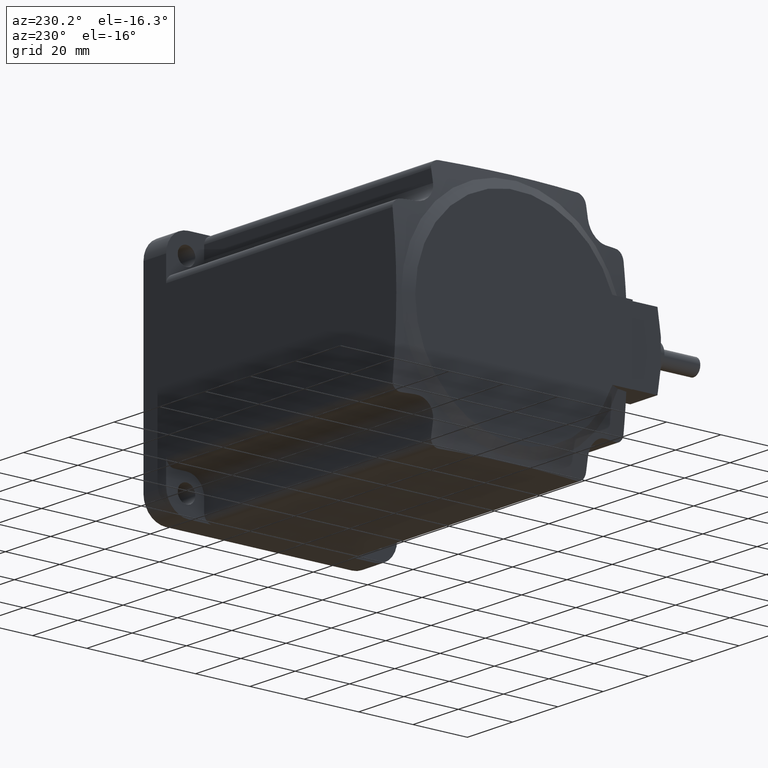
[diagram: clean part render]
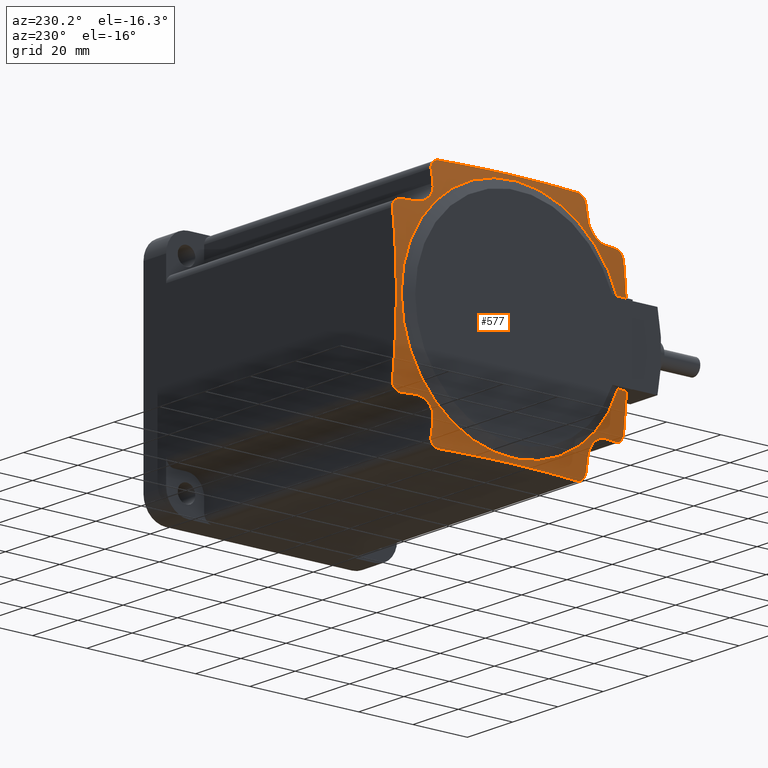
[diagram: same view with one face highlighted and labeled with its STEP entity id]
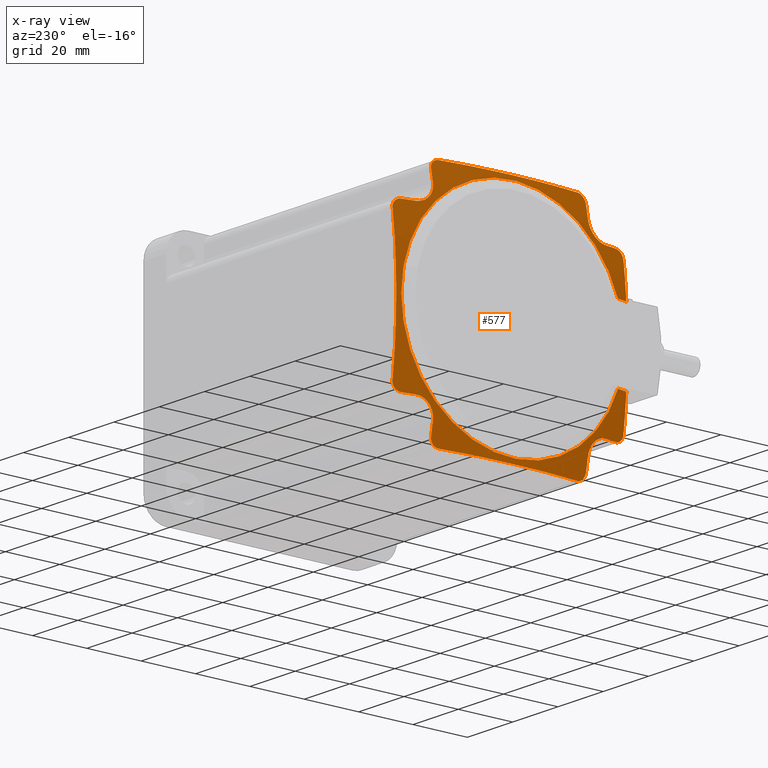
[diagram: x-ray of the same camera — body ghosted, the highlighted face saturated]
A machine part, auxiliary view. The second image highlights one B-rep face of the part: STEP entity #577.
The next image is the same camera in x-ray: the body ghosted, the highlighted face saturated — about 0% of this face is hidden behind the body in this view.
In plain terms, the highlighted spherical surface has radius 200 mm.
Its self-contained STEP definition (entity closure, byte-faithful):
#577 = ADVANCED_FACE( '', ( #1285 ), #1286, .T. );
#1285 = FACE_OUTER_BOUND( '', #2113, .T. );
#1286 = SPHERICAL_SURFACE( '', #2114, 200.000000000000 );
#2113 = EDGE_LOOP( '', ( #3770, #3771, #3772, #3773, #3774, #3775, #3776, #3777, #3778, #3779, #3780, #3781, #3782, #3783, #3784, #3785, #3786, #3787, #3788, #3789, #3790, #3791, #3792, #3793, #3794, #3795, #3796, #3797 ) );
#2114 = AXIS2_PLACEMENT_3D( '', #3798, #3799, #3800 );
#3770 = ORIENTED_EDGE( '', *, *, #5602, .F. );
#3771 = ORIENTED_EDGE( '', *, *, #5603, .T. );
#3772 = ORIENTED_EDGE( '', *, *, #5407, .T. );
#3773 = ORIENTED_EDGE( '', *, *, #4954, .T. );
#3774 = ORIENTED_EDGE( '', *, *, #5604, .F. );
#3775 = ORIENTED_EDGE( '', *, *, #5599, .T. );
#3776 = ORIENTED_EDGE( '', *, *, #5555, .T. );
#3777 = ORIENTED_EDGE( '', *, *, #5605, .F. );
#3778 = ORIENTED_EDGE( '', *, *, #5139, .T. );
#3779 = ORIENTED_EDGE( '', *, *, #5606, .T. );
#3780 = ORIENTED_EDGE( '', *, *, #5305, .F. );
#3781 = ORIENTED_EDGE( '', *, *, #5134, .T. );
#3782 = ORIENTED_EDGE( '', *, *, #5538, .T. );
#3783 = ORIENTED_EDGE( '', *, *, #5388, .F. );
#3784 = ORIENTED_EDGE( '', *, *, #5243, .T. );
#3785 = ORIENTED_EDGE( '', *, *, #5466, .T. );
#3786 = ORIENTED_EDGE( '', *, *, #5607, .F. );
#3787 = ORIENTED_EDGE( '', *, *, #5187, .T. );
#3788 = ORIENTED_EDGE( '', *, *, #5608, .T. );
#3789 = ORIENTED_EDGE( '', *, *, #5234, .F. );
#3790 = ORIENTED_EDGE( '', *, *, #5520, .T. );
#3791 = ORIENTED_EDGE( '', *, *, #5248, .T. );
#3792 = ORIENTED_EDGE( '', *, *, #5609, .F. );
#3793 = ORIENTED_EDGE( '', *, *, #5486, .T. );
#3794 = ORIENTED_EDGE( '', *, *, #5039, .T. );
#3795 = ORIENTED_EDGE( '', *, *, #5014, .F. );
#3796 = ORIENTED_EDGE( '', *, *, #5377, .T. );
#3797 = ORIENTED_EDGE( '', *, *, #4970, .T. );
#3798 = CARTESIAN_POINT( '', ( 83.7598999999906, 0.000000000000000, 0.000000000000000 ) );
#3799 = DIRECTION( '', ( 1.00000000000000, 0.000000000000000, 0.000000000000000 ) );
#3800 = DIRECTION( '', ( 0.000000000000000, 1.00000000000000, 0.000000000000000 ) );
#4954 = EDGE_CURVE( '', #5941, #5942, #5943, .F. );
#4970 = EDGE_CURVE( '', #5971, #5969, #5972, .T. );
#5014 = EDGE_CURVE( '', #6048, #6044, #6050, .T. );
#5039 = EDGE_CURVE( '', #6093, #6044, #6094, .T. );
#5134 = EDGE_CURVE( '', #6262, #6260, #6263, .T. );
#5139 = EDGE_CURVE( '', #6271, #6269, #6272, .T. );
#5187 = EDGE_CURVE( '', #6348, #6346, #6349, .T. );
#5234 = EDGE_CURVE( '', #6428, #6424, #6430, .T. );
#5243 = EDGE_CURVE( '', #6446, #6444, #6447, .T. );
#5248 = EDGE_CURVE( '', #6455, #6453, #6456, .T. );
#5305 = EDGE_CURVE( '', #6262, #6545, #6547, .T. );
#5377 = EDGE_CURVE( '', #6048, #5971, #6664, .T. );
#5388 = EDGE_CURVE( '', #6446, #6678, #6680, .T. );
#5407 = EDGE_CURVE( '', #6705, #5941, #6706, .T. );
#5466 = EDGE_CURVE( '', #6444, #6789, #6791, .T. );
#5486 = EDGE_CURVE( '', #6819, #6093, #6820, .T. );
#5520 = EDGE_CURVE( '', #6428, #6455, #6870, .T. );
#5538 = EDGE_CURVE( '', #6260, #6678, #6892, .T. );
#5555 = EDGE_CURVE( '', #6916, #6914, #6917, .T. );
#5599 = EDGE_CURVE( '', #6976, #6916, #6977, .T. );
#5602 = EDGE_CURVE( '', #6980, #5969, #6981, .T. );
#5603 = EDGE_CURVE( '', #6980, #6705, #6982, .F. );
#5604 = EDGE_CURVE( '', #6976, #5942, #6983, .T. );
#5605 = EDGE_CURVE( '', #6271, #6914, #6984, .T. );
#5606 = EDGE_CURVE( '', #6269, #6545, #6985, .T. );
#5607 = EDGE_CURVE( '', #6348, #6789, #6986, .T. );
#5608 = EDGE_CURVE( '', #6346, #6424, #6987, .T. );
#5609 = EDGE_CURVE( '', #6819, #6453, #6988, .T. );
#5941 = VERTEX_POINT( '', #7397 );
#5942 = VERTEX_POINT( '', #7398 );
#5943 = CIRCLE( '', #7399, 199.560611093500 );
#5969 = VERTEX_POINT( '', #7434 );
#5971 = VERTEX_POINT( '', #7437 );
#5972 = B_SPLINE_CURVE_WITH_KNOTS( '', 3, ( #7438, #7439, #7440, #7441, #7442, #7443, #7444, #7445, #7446, #7447, #7448, #7449, #7450, #7451, #7452, #7453, #7454, #7455 ), .UNSPECIFIED., .F., .F., ( 4, 2, 2, 2, 2, 2, 2, 2, 4 ), ( 0.000000000000000, 0.000589672068764066, 0.00117914285926796, 0.00176861364977185, 0.00235808444027574, 0.00294755523077962, 0.00353702602128351, 0.00412649681178740, 0.00471596760229129 ), .UNSPECIFIED. );
#6044 = VERTEX_POINT( '', #7548 );
#6048 = VERTEX_POINT( '', #7553 );
#6050 = B_SPLINE_CURVE_WITH_KNOTS( '', 3, ( #7556, #7557, #7558, #7559, #7560, #7561, #7562, #7563, #7564, #7565, #7566, #7567, #7568, #7569, #7570, #7571, #7572, #7573, #7574, #7575, #7576, #7577 ), .UNSPECIFIED., .F., .F., ( 4, 2, 2, 2, 2, 2, 2, 2, 2, 2, 4 ), ( 0.000000000000000, 0.00127705316689644, 0.00191547955696720, 0.00255390594703797, 0.00383075872717948, 0.00510761150732099, 0.00638446428746250, 0.00766131706760399, 0.00829974345767474, 0.00893816984774549, 0.0102150226278870 ), .UNSPECIFIED. );
#6093 = VERTEX_POINT( '', #7631 );
#6094 = CIRCLE( '', #7632, 197.958960393300 );
#6260 = VERTEX_POINT( '', #7857 );
#6262 = VERTEX_POINT( '', #7860 );
#6263 = B_SPLINE_CURVE_WITH_KNOTS( '', 3, ( #7861, #7862, #7863, #7864, #7865, #7866, #7867, #7868, #7869, #7870, #7871, #7872, #7873, #7874, #7875, #7876 ), .UNSPECIFIED., .F., .F., ( 4, 2, 2, 2, 2, 2, 2, 4 ), ( 0.000000000000000, 0.000589699760216727, 0.00117920061243457, 0.00176870146465242, 0.00235820231687027, 0.00353720402130596, 0.00412670487352381, 0.00471620572574166 ), .UNSPECIFIED. );
#6269 = VERTEX_POINT( '', #7884 );
#6271 = VERTEX_POINT( '', #7887 );
#6272 = CIRCLE( '', #7888, 197.958960393300 );
#6346 = VERTEX_POINT( '', #7990 );
#6348 = VERTEX_POINT( '', #7993 );
#6349 = B_SPLINE_CURVE_WITH_KNOTS( '', 3, ( #7994, #7995, #7996, #7997, #7998, #7999, #8000, #8001, #8002, #8003, #8004, #8005, #8006, #8007, #8008, #8009 ), .UNSPECIFIED., .F., .F., ( 4, 2, 2, 2, 2, 2, 2, 4 ), ( 0.000000000000000, 0.000589699760216713, 0.00117920061243455, 0.00176870146465239, 0.00235820231687023, 0.00353720402130590, 0.00412670487352375, 0.00471620572574160 ), .UNSPECIFIED. );
#6424 = VERTEX_POINT( '', #8114 );
#6428 = VERTEX_POINT( '', #8119 );
#6430 = B_SPLINE_CURVE_WITH_KNOTS( '', 3, ( #8122, #8123, #8124, #8125, #8126, #8127, #8128, #8129, #8130, #8131, #8132, #8133, #8134, #8135, #8136, #8137, #8138, #8139, #8140, #8141, #8142, #8143 ), .UNSPECIFIED., .F., .F., ( 4, 2, 2, 2, 2, 2, 2, 2, 2, 2, 4 ), ( 0.000000000000000, 0.00127705316689642, 0.00191547955696718, 0.00255390594703794, 0.00383075872717944, 0.00510761150732094, 0.00638446428746243, 0.00766131706760392, 0.00829974345767467, 0.00893816984774543, 0.0102150226278870 ), .UNSPECIFIED. );
#6444 = VERTEX_POINT( '', #8162 );
#6446 = VERTEX_POINT( '', #8165 );
#6447 = CIRCLE( '', #8166, 197.958960393300 );
#6453 = VERTEX_POINT( '', #8173 );
#6455 = VERTEX_POINT( '', #8176 );
#6456 = B_SPLINE_CURVE_WITH_KNOTS( '', 3, ( #8177, #8178, #8179, #8180, #8181, #8182, #8183, #8184, #8185, #8186, #8187, #8188, #8189, #8190, #8191, #8192, #8193, #8194 ), .UNSPECIFIED., .F., .F., ( 4, 2, 2, 2, 2, 2, 2, 2, 4 ), ( 0.000000000000000, 0.000589672068764072, 0.00117914285926796, 0.00176861364977185, 0.00235808444027574, 0.00294755523077963, 0.00353702602128352, 0.00412649681178741, 0.00471596760229130 ), .UNSPECIFIED. );
#6545 = VERTEX_POINT( '', #8311 );
#6547 = CIRCLE( '', #8314, 195.432213311900 );
#6664 = CIRCLE( '', #8481, 197.958960393300 );
#6678 = VERTEX_POINT( '', #8500 );
#6680 = B_SPLINE_CURVE_WITH_KNOTS( '', 3, ( #8503, #8504, #8505, #8506, #8507, #8508, #8509, #8510, #8511, #8512, #8513, #8514, #8515, #8516, #8517, #8518, #8519, #8520, #8521, #8522, #8523, #8524 ), .UNSPECIFIED., .F., .F., ( 4, 2, 2, 2, 2, 2, 2, 2, 2, 2, 4 ), ( 0.000000000000000, 0.00127705316689641, 0.00191547955696717, 0.00255390594703792, 0.00383075872717943, 0.00510761150732094, 0.00638446428746244, 0.00766131706760395, 0.00829974345767470, 0.00893816984774545, 0.0102150226278870 ), .UNSPECIFIED. );
#6705 = VERTEX_POINT( '', #8557 );
#6706 = CIRCLE( '', #8558, 40.9640743395000 );
#6789 = VERTEX_POINT( '', #8685 );
#6791 = B_SPLINE_CURVE_WITH_KNOTS( '', 3, ( #8688, #8689, #8690, #8691, #8692, #8693, #8694, #8695, #8696, #8697, #8698, #8699, #8700, #8701, #8702, #8703, #8704, #8705 ), .UNSPECIFIED., .F., .F., ( 4, 2, 2, 2, 2, 2, 2, 2, 4 ), ( 0.000000000000000, 0.000589672068764071, 0.00117914285926796, 0.00176861364977185, 0.00235808444027574, 0.00294755523077962, 0.00353702602128351, 0.00412649681178740, 0.00471596760229129 ), .UNSPECIFIED. );
#6819 = VERTEX_POINT( '', #8742 );
#6820 = B_SPLINE_CURVE_WITH_KNOTS( '', 3, ( #8743, #8744, #8745, #8746, #8747, #8748, #8749, #8750, #8751, #8752, #8753, #8754, #8755, #8756, #8757, #8758 ), .UNSPECIFIED., .F., .F., ( 4, 2, 2, 2, 2, 2, 2, 4 ), ( 0.000000000000000, 0.000589699760216722, 0.00117920061243457, 0.00176870146465241, 0.00235820231687026, 0.00353720402130593, 0.00412670487352377, 0.00471620572574161 ), .UNSPECIFIED. );
#6870 = CIRCLE( '', #8902, 197.958960393300 );
#6892 = CIRCLE( '', #8931, 197.958960393300 );
#6914 = VERTEX_POINT( '', #8959 );
#6916 = VERTEX_POINT( '', #8962 );
#6917 = CIRCLE( '', #8963, 197.958960393300 );
#6976 = VERTEX_POINT( '', #9039 );
#6977 = B_SPLINE_CURVE_WITH_KNOTS( '', 3, ( #9040, #9041, #9042, #9043, #9044, #9045, #9046, #9047, #9048, #9049, #9050, #9051, #9052, #9053, #9054, #9055 ), .UNSPECIFIED., .F., .F., ( 4, 2, 2, 2, 2, 2, 2, 4 ), ( 0.000000000000000, 0.000589699760216712, 0.00117920061243455, 0.00176870146465240, 0.00235820231687024, 0.00353720402130591, 0.00412670487352375, 0.00471620572574160 ), .UNSPECIFIED. );
#6980 = VERTEX_POINT( '', #9059 );
#6981 = CIRCLE( '', #9060, 195.432213311900 );
#6982 = CIRCLE( '', #9061, 199.560611093500 );
#6983 = CIRCLE( '', #9062, 195.432213311900 );
#6984 = B_SPLINE_CURVE_WITH_KNOTS( '', 3, ( #9063, #9064, #9065, #9066, #9067, #9068, #9069, #9070, #9071, #9072, #9073, #9074, #9075, #9076, #9077, #9078, #9079, #9080, #9081, #9082, #9083, #9084 ), .UNSPECIFIED., .F., .F., ( 4, 2, 2, 2, 2, 2, 2, 2, 2, 2, 4 ), ( 0.000000000000000, 0.00127705316689641, 0.00191547955696715, 0.00255390594703790, 0.00383075872717942, 0.00510761150732093, 0.00638446428746244, 0.00766131706760395, 0.00829974345767470, 0.00893816984774546, 0.0102150226278870 ), .UNSPECIFIED. );
#6985 = B_SPLINE_CURVE_WITH_KNOTS( '', 3, ( #9085, #9086, #9087, #9088, #9089, #9090, #9091, #9092, #9093, #9094, #9095, #9096, #9097, #9098, #9099, #9100, #9101, #9102 ), .UNSPECIFIED., .F., .F., ( 4, 2, 2, 2, 2, 2, 2, 2, 4 ), ( 0.000000000000000, 0.000589672068764059, 0.00117914285926795, 0.00176861364977184, 0.00235808444027573, 0.00294755523077962, 0.00353702602128351, 0.00412649681178740, 0.00471596760229129 ), .UNSPECIFIED. );
#6986 = CIRCLE( '', #9103, 195.432213311900 );
#6987 = CIRCLE( '', #9104, 197.958960393300 );
#6988 = CIRCLE( '', #9105, 195.432213311900 );
#7397 = CARTESIAN_POINT( '', ( -112.000015747604, -38.7620031279487, 13.2500000000000 ) );
#7398 = CARTESIAN_POINT( '', ( -111.222631268828, -42.5000000000000, 13.2500000000000 ) );
#7399 = AXIS2_PLACEMENT_3D( '', #9672, #9673, #9674 );
#7434 = CARTESIAN_POINT( '', ( -110.001551274498, -42.5000000000000, -25.5000000000000 ) );
#7437 = CARTESIAN_POINT( '', ( -110.218191546441, -39.5000000000000, -28.5000000000000 ) );
#7438 = CARTESIAN_POINT( '', ( -110.218191546441, -39.5000000000000, -28.5000000000000 ) );
#7439 = CARTESIAN_POINT( '', ( -110.178434277833, -39.6952414959446, -28.5000000000000 ) );
#7440 = CARTESIAN_POINT( '', ( -110.141686980485, -39.8878299270326, -28.4811204923860 ) );
#7441 = CARTESIAN_POINT( '', ( -110.074073420150, -40.2678328494549, -28.4065312930921 ) );
#7442 = CARTESIAN_POINT( '', ( -110.042920012067, -40.4572350565646, -28.3499239905236 ) );
#7443 = CARTESIAN_POINT( '', ( -109.988601865855, -40.8196751352892, -28.2012632679133 ) );
#7444 = CARTESIAN_POINT( '', ( -109.965463435438, -40.9920626276610, -28.1100191967480 ) );
#7445 = CARTESIAN_POINT( '', ( -109.927263305563, -41.3191143824161, -27.8935901812847 ) );
#7446 = CARTESIAN_POINT( '', ( -109.912210964726, -41.4745950962449, -27.7670691378719 ) );
#7447 = CARTESIAN_POINT( '', ( -109.891798385461, -41.7534956634546, -27.4900717486556 ) );
#7448 = CARTESIAN_POINT( '', ( -109.886178182951, -41.8787715288951, -27.3386951842127 ) );
#7449 = CARTESIAN_POINT( '', ( -109.884372105876, -42.1001718238833, -27.0094570061490 ) );
#7450 = CARTESIAN_POINT( '', ( -109.888286156272, -42.1942484590473, -26.8340086676695 ) );
#7451 = CARTESIAN_POINT( '', ( -109.905248525857, -42.3451420196367, -26.4714529183617 ) );
#7452 = CARTESIAN_POINT( '', ( -109.918427933174, -42.4031819086701, -26.2814554786052 ) );
#7453 = CARTESIAN_POINT( '', ( -109.953708775255, -42.4806602059133, -25.8934496114573 ) );
#7454 = CARTESIAN_POINT( '', ( -109.975542102579, -42.5000000000000, -25.6976303881319 ) );
#7455 = CARTESIAN_POINT( '', ( -110.001551274498, -42.5000000000000, -25.5000000000000 ) );
#7548 = CARTESIAN_POINT( '', ( -111.080419236034, -28.5000000000000, -35.0000000000000 ) );
#7553 = CARTESIAN_POINT( '', ( -111.080419236034, -35.0000000000000, -28.5000000000000 ) );
#7556 = CARTESIAN_POINT( '', ( -111.080419236034, -35.0000000000000, -28.5000000000000 ) );
#7557 = CARTESIAN_POINT( '', ( -111.156727022152, -34.5752047597847, -28.5000000000000 ) );
#7558 = CARTESIAN_POINT( '', ( -111.224568631561, -34.1560470245639, -28.5412464514992 ) );
#7559 = CARTESIAN_POINT( '', ( -111.313952233334, -33.5355832175741, -28.6636033904431 ) );
#7560 = CARTESIAN_POINT( '', ( -111.341668999336, -33.3301504631967, -28.7145413664387 ) );
#7561 = CARTESIAN_POINT( '', ( -111.392818880755, -32.9221522642051, -28.8373758433095 ) );
#7562 = CARTESIAN_POINT( '', ( -111.416265561418, -32.7192189615772, -28.9095642858863 ) );
#7563 = CARTESIAN_POINT( '', ( -111.478516899853, -32.1284619728082, -29.1531421523768 ) );
#7564 = CARTESIAN_POINT( '', ( -111.509927581296, -31.7539181967594, -29.3524373697972 ) );
#7565 = CARTESIAN_POINT( '', ( -111.552508714601, -31.0435911811091, -29.8251724672994 ) );
#7566 = CARTESIAN_POINT( '', ( -111.563421333660, -30.7070703114138, -30.1007888770084 ) );
#7567 = CARTESIAN_POINT( '', ( -111.563509700899, -30.1043041801417, -30.7030618600901 ) );
#7568 = CARTESIAN_POINT( '', ( -111.553043442655, -29.8336841099349, -31.0320955641185 ) );
#7569 = CARTESIAN_POINT( '', ( -111.510456219870, -29.3557944544419, -31.7476117624553 ) );
#7570 = CARTESIAN_POINT( '', ( -111.478776854925, -29.1548515922963, -32.1253020888269 ) );
#7571 = CARTESIAN_POINT( '', ( -111.416971380238, -28.9119868478693, -32.7128603329421 ) );
#7572 = CARTESIAN_POINT( '', ( -111.393946805718, -28.8405945886856, -32.9126443591110 ) );
#7573 = CARTESIAN_POINT( '', ( -111.342979523859, -28.7172022635758, -33.3201841780531 ) );
#7574 = CARTESIAN_POINT( '', ( -111.314926591594, -28.6651635248471, -33.5285926295402 ) );
#7575 = CARTESIAN_POINT( '', ( -111.224899190351, -28.5412547585588, -34.1541979113037 ) );
#7576 = CARTESIAN_POINT( '', ( -111.156735122331, -28.5000000000000, -34.5751596671731 ) );
#7577 = CARTESIAN_POINT( '', ( -111.080419236034, -28.5000000000000, -35.0000000000000 ) );
#7631 = CARTESIAN_POINT( '', ( -110.218191546441, -28.5000000000000, -39.5000000000001 ) );
#7632 = AXIS2_PLACEMENT_3D( '', #9785, #9786, #9787 );
#7857 = CARTESIAN_POINT( '', ( -110.218191546442, 28.5000000000000, 39.5000000000000 ) );
#7860 = CARTESIAN_POINT( '', ( -110.001551274499, 25.5000000000000, 42.5000000000000 ) );
#7861 = CARTESIAN_POINT( '', ( -110.001551274499, 25.5000000000000, 42.5000000000000 ) );
#7862 = CARTESIAN_POINT( '', ( -109.975548981919, 25.6975781155591, 42.5000000000000 ) );
#7863 = CARTESIAN_POINT( '', ( -109.953849580420, 25.8923641370944, 42.4806703667323 ) );
#7864 = CARTESIAN_POINT( '', ( -109.918837031577, 26.2765005388200, 42.4043746942167 ) );
#7865 = CARTESIAN_POINT( '', ( -109.905451733071, 26.4679609425707, 42.3464000432872 ) );
#7866 = CARTESIAN_POINT( '', ( -109.888318735253, 26.8324725866313, 42.1950804067121 ) );
#7867 = CARTESIAN_POINT( '', ( -109.884439357079, 27.0056025418311, 42.1023304555328 ) );
#7868 = CARTESIAN_POINT( '', ( -109.886064196447, 27.3335958255353, 41.8826223289354 ) );
#7869 = CARTESIAN_POINT( '', ( -109.891718123019, 27.4883559088918, 41.7549968383328 ) );
#7870 = CARTESIAN_POINT( '', ( -109.922201045754, 27.9038757376583, 41.3372972767523 ) );
#7871 = CARTESIAN_POINT( '', ( -109.961448744882, 28.1264531795835, 41.0011751803713 ) );
#7872 = CARTESIAN_POINT( '', ( -110.042378498766, 28.3486874915899, 40.4606900550836 ) );
#7873 = CARTESIAN_POINT( '', ( -110.073449451312, 28.4056739298910, 40.2714484691392 ) );
#7874 = CARTESIAN_POINT( '', ( -110.141537660715, 28.4811228793135, 39.8885615856192 ) );
#7875 = CARTESIAN_POINT( '', ( -110.178437053692, 28.5000000000000, 39.6952278641555 ) );
#7876 = CARTESIAN_POINT( '', ( -110.218191546442, 28.5000000000000, 39.5000000000000 ) );
#7884 = CARTESIAN_POINT( '', ( -110.218191546441, -28.5000000000000, 39.5000000000000 ) );
#7887 = CARTESIAN_POINT( '', ( -111.080419236034, -28.5000000000000, 35.0000000000000 ) );
#7888 = AXIS2_PLACEMENT_3D( '', #9936, #9937, #9938 );
#7990 = CARTESIAN_POINT( '', ( -110.218191546442, 39.5000000000001, -28.5000000000000 ) );
#7993 = CARTESIAN_POINT( '', ( -110.001551274499, 42.5000000000000, -25.5000000000000 ) );
#7994 = CARTESIAN_POINT( '', ( -110.001551274499, 42.5000000000000, -25.5000000000000 ) );
#7995 = CARTESIAN_POINT( '', ( -109.975548981919, 42.5000000000000, -25.6975781155591 ) );
#7996 = CARTESIAN_POINT( '', ( -109.953849580421, 42.4806703667323, -25.8923641370944 ) );
#7997 = CARTESIAN_POINT( '', ( -109.918837031577, 42.4043746942166, -26.2765005388200 ) );
#7998 = CARTESIAN_POINT( '', ( -109.905451733071, 42.3464000432871, -26.4679609425706 ) );
#7999 = CARTESIAN_POINT( '', ( -109.888318735253, 42.1950804067121, -26.8324725866313 ) );
#8000 = CARTESIAN_POINT( '', ( -109.884439357079, 42.1023304555328, -27.0056025418311 ) );
#8001 = CARTESIAN_POINT( '', ( -109.886064196447, 41.8826223289354, -27.3335958255353 ) );
#8002 = CARTESIAN_POINT( '', ( -109.891718123019, 41.7549968383329, -27.4883559088918 ) );
#8003 = CARTESIAN_POINT( '', ( -109.922201045754, 41.3372972767523, -27.9038757376583 ) );
#8004 = CARTESIAN_POINT( '', ( -109.961448744882, 41.0011751803714, -28.1264531795835 ) );
#8005 = CARTESIAN_POINT( '', ( -110.042378498766, 40.4606900550836, -28.3486874915898 ) );
#8006 = CARTESIAN_POINT( '', ( -110.073449451312, 40.2714484691393, -28.4056739298909 ) );
#8007 = CARTESIAN_POINT( '', ( -110.141537660715, 39.8885615856192, -28.4811228793135 ) );
#8008 = CARTESIAN_POINT( '', ( -110.178437053692, 39.6952278641556, -28.5000000000000 ) );
#8009 = CARTESIAN_POINT( '', ( -110.218191546442, 39.5000000000001, -28.5000000000000 ) );
#8114 = CARTESIAN_POINT( '', ( -111.080419236035, 35.0000000000000, -28.5000000000000 ) );
#8119 = CARTESIAN_POINT( '', ( -111.080419236035, 28.5000000000000, -35.0000000000000 ) );
#8122 = CARTESIAN_POINT( '', ( -111.080419236035, 28.5000000000000, -35.0000000000000 ) );
#8123 = CARTESIAN_POINT( '', ( -111.156727022153, 28.5000000000000, -34.5752047597847 ) );
#8124 = CARTESIAN_POINT( '', ( -111.224568631562, 28.5412464514992, -34.1560470245639 ) );
#8125 = CARTESIAN_POINT( '', ( -111.313952233335, 28.6636033904431, -33.5355832175741 ) );
#8126 = CARTESIAN_POINT( '', ( -111.341668999337, 28.7145413664387, -33.3301504631967 ) );
#8127 = CARTESIAN_POINT( '', ( -111.392818880756, 28.8373758433095, -32.9221522642052 ) );
#8128 = CARTESIAN_POINT( '', ( -111.416265561419, 28.9095642858863, -32.7192189615772 ) );
#8129 = CARTESIAN_POINT( '', ( -111.478516899854, 29.1531421523768, -32.1284619728082 ) );
#8130 = CARTESIAN_POINT( '', ( -111.509927581296, 29.3524373697972, -31.7539181967594 ) );
#8131 = CARTESIAN_POINT( '', ( -111.552508714602, 29.8251724672994, -31.0435911811091 ) );
#8132 = CARTESIAN_POINT( '', ( -111.563421333660, 30.1007888770084, -30.7070703114138 ) );
#8133 = CARTESIAN_POINT( '', ( -111.563509700900, 30.7030618600901, -30.1043041801417 ) );
#8134 = CARTESIAN_POINT( '', ( -111.553043442656, 31.0320955641185, -29.8336841099349 ) );
#8135 = CARTESIAN_POINT( '', ( -111.510456219870, 31.7476117624553, -29.3557944544419 ) );
#8136 = CARTESIAN_POINT( '', ( -111.478776854926, 32.1253020888269, -29.1548515922963 ) );
#8137 = CARTESIAN_POINT( '', ( -111.416971380239, 32.7128603329421, -28.9119868478693 ) );
#8138 = CARTESIAN_POINT( '', ( -111.393946805719, 32.9126443591110, -28.8405945886856 ) );
#8139 = CARTESIAN_POINT( '', ( -111.342979523860, 33.3201841780531, -28.7172022635758 ) );
#8140 = CARTESIAN_POINT( '', ( -111.314926591595, 33.5285926295402, -28.6651635248471 ) );
#8141 = CARTESIAN_POINT( '', ( -111.224899190352, 34.1541979113037, -28.5412547585588 ) );
#8142 = CARTESIAN_POINT( '', ( -111.156735122332, 34.5751596671731, -28.5000000000000 ) );
#8143 = CARTESIAN_POINT( '', ( -111.080419236035, 35.0000000000000, -28.5000000000000 ) );
#8162 = CARTESIAN_POINT( '', ( -110.218191546442, 39.5000000000000, 28.5000000000000 ) );
#8165 = CARTESIAN_POINT( '', ( -111.080419236035, 35.0000000000000, 28.5000000000000 ) );
#8166 = AXIS2_PLACEMENT_3D( '', #10045, #10046, #10047 );
#8173 = CARTESIAN_POINT( '', ( -110.001551274499, 25.5000000000000, -42.5000000000000 ) );
#8176 = CARTESIAN_POINT( '', ( -110.218191546442, 28.5000000000000, -39.5000000000000 ) );
#8177 = CARTESIAN_POINT( '', ( -110.218191546442, 28.5000000000000, -39.5000000000000 ) );
#8178 = CARTESIAN_POINT( '', ( -110.178434277833, 28.5000000000000, -39.6952414959446 ) );
#8179 = CARTESIAN_POINT( '', ( -110.141686980486, 28.4811204923860, -39.8878299270326 ) );
#8180 = CARTESIAN_POINT( '', ( -110.074073420151, 28.4065312930921, -40.2678328494549 ) );
#8181 = CARTESIAN_POINT( '', ( -110.042920012068, 28.3499239905236, -40.4572350565646 ) );
#8182 = CARTESIAN_POINT( '', ( -109.988601865856, 28.2012632679133, -40.8196751352892 ) );
#8183 = CARTESIAN_POINT( '', ( -109.965463435439, 28.1100191967480, -40.9920626276610 ) );
#8184 = CARTESIAN_POINT( '', ( -109.927263305563, 27.8935901812847, -41.3191143824161 ) );
#8185 = CARTESIAN_POINT( '', ( -109.912210964727, 27.7670691378719, -41.4745950962449 ) );
#8186 = CARTESIAN_POINT( '', ( -109.891798385462, 27.4900717486556, -41.7534956634546 ) );
#8187 = CARTESIAN_POINT( '', ( -109.886178182952, 27.3386951842127, -41.8787715288951 ) );
#8188 = CARTESIAN_POINT( '', ( -109.884372105877, 27.0094570061490, -42.1001718238833 ) );
#8189 = CARTESIAN_POINT( '', ( -109.888286156273, 26.8340086676695, -42.1942484590473 ) );
#8190 = CARTESIAN_POINT( '', ( -109.905248525858, 26.4714529183617, -42.3451420196367 ) );
#8191 = CARTESIAN_POINT( '', ( -109.918427933175, 26.2814554786052, -42.4031819086701 ) );
#8192 = CARTESIAN_POINT( '', ( -109.953708775256, 25.8934496114573, -42.4806602059133 ) );
#8193 = CARTESIAN_POINT( '', ( -109.975542102580, 25.6976303881319, -42.5000000000000 ) );
#8194 = CARTESIAN_POINT( '', ( -110.001551274499, 25.5000000000000, -42.5000000000000 ) );
#8311 = CARTESIAN_POINT( '', ( -110.001551274498, -25.5000000000000, 42.5000000000000 ) );
#8314 = AXIS2_PLACEMENT_3D( '', #10145, #10146, #10147 );
#8481 = AXIS2_PLACEMENT_3D( '', #10235, #10236, #10237 );
#8500 = CARTESIAN_POINT( '', ( -111.080419236035, 28.5000000000000, 35.0000000000000 ) );
#8503 = CARTESIAN_POINT( '', ( -111.080419236035, 35.0000000000000, 28.5000000000000 ) );
#8504 = CARTESIAN_POINT( '', ( -111.156727022153, 34.5752047597847, 28.5000000000000 ) );
#8505 = CARTESIAN_POINT( '', ( -111.224568631562, 34.1560470245639, 28.5412464514992 ) );
#8506 = CARTESIAN_POINT( '', ( -111.313952233335, 33.5355832175742, 28.6636033904431 ) );
#8507 = CARTESIAN_POINT( '', ( -111.341668999337, 33.3301504631967, 28.7145413664387 ) );
#8508 = CARTESIAN_POINT( '', ( -111.392818880756, 32.9221522642052, 28.8373758433095 ) );
#8509 = CARTESIAN_POINT( '', ( -111.416265561419, 32.7192189615772, 28.9095642858863 ) );
#8510 = CARTESIAN_POINT( '', ( -111.478516899854, 32.1284619728082, 29.1531421523768 ) );
#8511 = CARTESIAN_POINT( '', ( -111.509927581296, 31.7539181967594, 29.3524373697972 ) );
#8512 = CARTESIAN_POINT( '', ( -111.552508714602, 31.0435911811092, 29.8251724672994 ) );
#8513 = CARTESIAN_POINT( '', ( -111.563421333660, 30.7070703114138, 30.1007888770084 ) );
#8514 = CARTESIAN_POINT( '', ( -111.563509700900, 30.1043041801417, 30.7030618600901 ) );
#8515 = CARTESIAN_POINT( '', ( -111.553043442656, 29.8336841099349, 31.0320955641185 ) );
#8516 = CARTESIAN_POINT( '', ( -111.510456219870, 29.3557944544419, 31.7476117624553 ) );
#8517 = CARTESIAN_POINT( '', ( -111.478776854926, 29.1548515922963, 32.1253020888269 ) );
#8518 = CARTESIAN_POINT( '', ( -111.416971380239, 28.9119868478693, 32.7128603329421 ) );
#8519 = CARTESIAN_POINT( '', ( -111.393946805719, 28.8405945886856, 32.9126443591110 ) );
#8520 = CARTESIAN_POINT( '', ( -111.342979523860, 28.7172022635758, 33.3201841780531 ) );
#8521 = CARTESIAN_POINT( '', ( -111.314926591595, 28.6651635248471, 33.5285926295402 ) );
#8522 = CARTESIAN_POINT( '', ( -111.224899190352, 28.5412547585588, 34.1541979113037 ) );
#8523 = CARTESIAN_POINT( '', ( -111.156735122332, 28.5000000000000, 34.5751596671731 ) );
#8524 = CARTESIAN_POINT( '', ( -111.080419236035, 28.5000000000000, 35.0000000000000 ) );
#8557 = CARTESIAN_POINT( '', ( -112.000015747604, -38.7620031279487, -13.2500000000000 ) );
#8558 = AXIS2_PLACEMENT_3D( '', #10270, #10271, #10272 );
#8685 = CARTESIAN_POINT( '', ( -110.001551274499, 42.5000000000000, 25.5000000000000 ) );
#8688 = CARTESIAN_POINT( '', ( -110.218191546442, 39.5000000000000, 28.5000000000000 ) );
#8689 = CARTESIAN_POINT( '', ( -110.178434277834, 39.6952414959446, 28.5000000000000 ) );
#8690 = CARTESIAN_POINT( '', ( -110.141686980486, 39.8878299270326, 28.4811204923860 ) );
#8691 = CARTESIAN_POINT( '', ( -110.074073420151, 40.2678328494549, 28.4065312930921 ) );
#8692 = CARTESIAN_POINT( '', ( -110.042920012068, 40.4572350565646, 28.3499239905236 ) );
#8693 = CARTESIAN_POINT( '', ( -109.988601865856, 40.8196751352892, 28.2012632679133 ) );
#8694 = CARTESIAN_POINT( '', ( -109.965463435439, 40.9920626276610, 28.1100191967480 ) );
#8695 = CARTESIAN_POINT( '', ( -109.927263305564, 41.3191143824161, 27.8935901812847 ) );
#8696 = CARTESIAN_POINT( '', ( -109.912210964727, 41.4745950962449, 27.7670691378719 ) );
#8697 = CARTESIAN_POINT( '', ( -109.891798385462, 41.7534956634546, 27.4900717486556 ) );
#8698 = CARTESIAN_POINT( '', ( -109.886178182952, 41.8787715288951, 27.3386951842127 ) );
#8699 = CARTESIAN_POINT( '', ( -109.884372105877, 42.1001718238833, 27.0094570061490 ) );
#8700 = CARTESIAN_POINT( '', ( -109.888286156273, 42.1942484590473, 26.8340086676695 ) );
#8701 = CARTESIAN_POINT( '', ( -109.905248525858, 42.3451420196367, 26.4714529183617 ) );
#8702 = CARTESIAN_POINT( '', ( -109.918427933175, 42.4031819086701, 26.2814554786052 ) );
#8703 = CARTESIAN_POINT( '', ( -109.953708775256, 42.4806602059133, 25.8934496114573 ) );
#8704 = CARTESIAN_POINT( '', ( -109.975542102580, 42.5000000000000, 25.6976303881319 ) );
#8705 = CARTESIAN_POINT( '', ( -110.001551274499, 42.5000000000000, 25.5000000000000 ) );
#8742 = CARTESIAN_POINT( '', ( -110.001551274498, -25.5000000000000, -42.5000000000000 ) );
#8743 = CARTESIAN_POINT( '', ( -110.001551274498, -25.5000000000000, -42.5000000000000 ) );
#8744 = CARTESIAN_POINT( '', ( -109.975548981918, -25.6975781155591, -42.5000000000000 ) );
#8745 = CARTESIAN_POINT( '', ( -109.953849580420, -25.8923641370944, -42.4806703667323 ) );
#8746 = CARTESIAN_POINT( '', ( -109.918837031576, -26.2765005388200, -42.4043746942167 ) );
#8747 = CARTESIAN_POINT( '', ( -109.905451733070, -26.4679609425706, -42.3464000432871 ) );
#8748 = CARTESIAN_POINT( '', ( -109.888318735252, -26.8324725866313, -42.1950804067121 ) );
#8749 = CARTESIAN_POINT( '', ( -109.884439357078, -27.0056025418311, -42.1023304555328 ) );
#8750 = CARTESIAN_POINT( '', ( -109.886064196447, -27.3335958255353, -41.8826223289354 ) );
#8751 = CARTESIAN_POINT( '', ( -109.891718123018, -27.4883559088917, -41.7549968383329 ) );
#8752 = CARTESIAN_POINT( '', ( -109.922201045753, -27.9038757376583, -41.3372972767523 ) );
#8753 = CARTESIAN_POINT( '', ( -109.961448744881, -28.1264531795835, -41.0011751803714 ) );
#8754 = CARTESIAN_POINT( '', ( -110.042378498765, -28.3486874915898, -40.4606900550836 ) );
#8755 = CARTESIAN_POINT( '', ( -110.073449451311, -28.4056739298909, -40.2714484691393 ) );
#8756 = CARTESIAN_POINT( '', ( -110.141537660714, -28.4811228793135, -39.8885615856192 ) );
#8757 = CARTESIAN_POINT( '', ( -110.178437053691, -28.5000000000000, -39.6952278641556 ) );
#8758 = CARTESIAN_POINT( '', ( -110.218191546441, -28.5000000000000, -39.5000000000001 ) );
#8902 = AXIS2_PLACEMENT_3D( '', #10388, #10389, #10390 );
#8931 = AXIS2_PLACEMENT_3D( '', #10407, #10408, #10409 );
#8959 = CARTESIAN_POINT( '', ( -111.080419236034, -35.0000000000000, 28.5000000000000 ) );
#8962 = CARTESIAN_POINT( '', ( -110.218191546441, -39.5000000000001, 28.5000000000000 ) );
#8963 = AXIS2_PLACEMENT_3D( '', #10429, #10430, #10431 );
#9039 = CARTESIAN_POINT( '', ( -110.001551274498, -42.5000000000000, 25.5000000000000 ) );
#9040 = CARTESIAN_POINT( '', ( -110.001551274498, -42.5000000000000, 25.5000000000000 ) );
#9041 = CARTESIAN_POINT( '', ( -109.975548981918, -42.5000000000000, 25.6975781155591 ) );
#9042 = CARTESIAN_POINT( '', ( -109.953849580420, -42.4806703667323, 25.8923641370944 ) );
#9043 = CARTESIAN_POINT( '', ( -109.918837031576, -42.4043746942167, 26.2765005388200 ) );
#9044 = CARTESIAN_POINT( '', ( -109.905451733070, -42.3464000432871, 26.4679609425706 ) );
#9045 = CARTESIAN_POINT( '', ( -109.888318735252, -42.1950804067121, 26.8324725866313 ) );
#9046 = CARTESIAN_POINT( '', ( -109.884439357078, -42.1023304555328, 27.0056025418311 ) );
#9047 = CARTESIAN_POINT( '', ( -109.886064196446, -41.8826223289354, 27.3335958255353 ) );
#9048 = CARTESIAN_POINT( '', ( -109.891718123018, -41.7549968383329, 27.4883559088917 ) );
#9049 = CARTESIAN_POINT( '', ( -109.922201045753, -41.3372972767523, 27.9038757376583 ) );
#9050 = CARTESIAN_POINT( '', ( -109.961448744881, -41.0011751803714, 28.1264531795835 ) );
#9051 = CARTESIAN_POINT( '', ( -110.042378498765, -40.4606900550836, 28.3486874915899 ) );
#9052 = CARTESIAN_POINT( '', ( -110.073449451311, -40.2714484691393, 28.4056739298909 ) );
#9053 = CARTESIAN_POINT( '', ( -110.141537660714, -39.8885615856192, 28.4811228793135 ) );
#9054 = CARTESIAN_POINT( '', ( -110.178437053691, -39.6952278641556, 28.5000000000000 ) );
#9055 = CARTESIAN_POINT( '', ( -110.218191546441, -39.5000000000001, 28.5000000000000 ) );
#9059 = CARTESIAN_POINT( '', ( -111.222631268828, -42.5000000000000, -13.2500000000000 ) );
#9060 = AXIS2_PLACEMENT_3D( '', #10486, #10487, #10488 );
#9061 = AXIS2_PLACEMENT_3D( '', #10489, #10490, #10491 );
#9062 = AXIS2_PLACEMENT_3D( '', #10492, #10493, #10494 );
#9063 = CARTESIAN_POINT( '', ( -111.080419236034, -28.5000000000000, 35.0000000000000 ) );
#9064 = CARTESIAN_POINT( '', ( -111.156727022153, -28.5000000000000, 34.5752047597847 ) );
#9065 = CARTESIAN_POINT( '', ( -111.224568631561, -28.5412464514992, 34.1560470245639 ) );
#9066 = CARTESIAN_POINT( '', ( -111.313952233334, -28.6636033904431, 33.5355832175741 ) );
#9067 = CARTESIAN_POINT( '', ( -111.341668999336, -28.7145413664387, 33.3301504631967 ) );
#9068 = CARTESIAN_POINT( '', ( -111.392818880756, -28.8373758433095, 32.9221522642052 ) );
#9069 = CARTESIAN_POINT( '', ( -111.416265561418, -28.9095642858863, 32.7192189615772 ) );
#9070 = CARTESIAN_POINT( '', ( -111.478516899853, -29.1531421523768, 32.1284619728082 ) );
#9071 = CARTESIAN_POINT( '', ( -111.509927581296, -29.3524373697972, 31.7539181967594 ) );
#9072 = CARTESIAN_POINT( '', ( -111.552508714601, -29.8251724672994, 31.0435911811091 ) );
#9073 = CARTESIAN_POINT( '', ( -111.563421333660, -30.1007888770084, 30.7070703114138 ) );
#9074 = CARTESIAN_POINT( '', ( -111.563509700899, -30.7030618600901, 30.1043041801417 ) );
#9075 = CARTESIAN_POINT( '', ( -111.553043442655, -31.0320955641185, 29.8336841099349 ) );
#9076 = CARTESIAN_POINT( '', ( -111.510456219869, -31.7476117624553, 29.3557944544419 ) );
#9077 = CARTESIAN_POINT( '', ( -111.478776854925, -32.1253020888269, 29.1548515922963 ) );
#9078 = CARTESIAN_POINT( '', ( -111.416971380238, -32.7128603329421, 28.9119868478693 ) );
#9079 = CARTESIAN_POINT( '', ( -111.393946805718, -32.9126443591110, 28.8405945886856 ) );
#9080 = CARTESIAN_POINT( '', ( -111.342979523859, -33.3201841780531, 28.7172022635758 ) );
#9081 = CARTESIAN_POINT( '', ( -111.314926591594, -33.5285926295402, 28.6651635248471 ) );
#9082 = CARTESIAN_POINT( '', ( -111.224899190351, -34.1541979113037, 28.5412547585588 ) );
#9083 = CARTESIAN_POINT( '', ( -111.156735122331, -34.5751596671731, 28.5000000000000 ) );
#9084 = CARTESIAN_POINT( '', ( -111.080419236034, -35.0000000000000, 28.5000000000000 ) );
#9085 = CARTESIAN_POINT( '', ( -110.218191546441, -28.5000000000000, 39.5000000000000 ) );
#9086 = CARTESIAN_POINT( '', ( -110.178434277833, -28.5000000000000, 39.6952414959446 ) );
#9087 = CARTESIAN_POINT( '', ( -110.141686980485, -28.4811204923860, 39.8878299270326 ) );
#9088 = CARTESIAN_POINT( '', ( -110.074073420150, -28.4065312930921, 40.2678328494549 ) );
#9089 = CARTESIAN_POINT( '', ( -110.042920012067, -28.3499239905236, 40.4572350565646 ) );
#9090 = CARTESIAN_POINT( '', ( -109.988601865856, -28.2012632679133, 40.8196751352892 ) );
#9091 = CARTESIAN_POINT( '', ( -109.965463435439, -28.1100191967480, 40.9920626276610 ) );
#9092 = CARTESIAN_POINT( '', ( -109.927263305563, -27.8935901812847, 41.3191143824161 ) );
#9093 = CARTESIAN_POINT( '', ( -109.912210964726, -27.7670691378719, 41.4745950962449 ) );
#9094 = CARTESIAN_POINT( '', ( -109.891798385461, -27.4900717486556, 41.7534956634546 ) );
#9095 = CARTESIAN_POINT( '', ( -109.886178182951, -27.3386951842127, 41.8787715288951 ) );
#9096 = CARTESIAN_POINT( '', ( -109.884372105876, -27.0094570061490, 42.1001718238833 ) );
#9097 = CARTESIAN_POINT( '', ( -109.888286156272, -26.8340086676695, 42.1942484590473 ) );
#9098 = CARTESIAN_POINT( '', ( -109.905248525857, -26.4714529183617, 42.3451420196367 ) );
#9099 = CARTESIAN_POINT( '', ( -109.918427933174, -26.2814554786052, 42.4031819086701 ) );
#9100 = CARTESIAN_POINT( '', ( -109.953708775255, -25.8934496114573, 42.4806602059133 ) );
#9101 = CARTESIAN_POINT( '', ( -109.975542102580, -25.6976303881319, 42.5000000000000 ) );
#9102 = CARTESIAN_POINT( '', ( -110.001551274498, -25.5000000000000, 42.5000000000000 ) );
#9103 = AXIS2_PLACEMENT_3D( '', #10495, #10496, #10497 );
#9104 = AXIS2_PLACEMENT_3D( '', #10498, #10499, #10500 );
#9105 = AXIS2_PLACEMENT_3D( '', #10501, #10502, #10503 );
#9672 = CARTESIAN_POINT( '', ( 83.7598999999906, 0.000000000000000, 13.2500000000000 ) );
#9673 = DIRECTION( '', ( 0.000000000000000, 0.000000000000000, -1.00000000000000 ) );
#9674 = DIRECTION( '', ( -1.00000000000000, 0.000000000000000, 0.000000000000000 ) );
#9785 = CARTESIAN_POINT( '', ( 83.7598999999906, -28.5000000000000, 0.000000000000000 ) );
#9786 = DIRECTION( '', ( -0.000000000000000, 1.00000000000000, 0.000000000000000 ) );
#9787 = DIRECTION( '', ( 0.000000000000000, -0.000000000000000, 1.00000000000000 ) );
#9936 = CARTESIAN_POINT( '', ( 83.7598999999906, -28.5000000000000, 0.000000000000000 ) );
#9937 = DIRECTION( '', ( -0.000000000000000, 1.00000000000000, 0.000000000000000 ) );
#9938 = DIRECTION( '', ( 0.000000000000000, -0.000000000000000, 1.00000000000000 ) );
#10045 = CARTESIAN_POINT( '', ( 83.7598999999906, 0.000000000000000, 28.5000000000000 ) );
#10046 = DIRECTION( '', ( 0.000000000000000, 0.000000000000000, -1.00000000000000 ) );
#10047 = DIRECTION( '', ( -1.00000000000000, 0.000000000000000, 0.000000000000000 ) );
#10145 = CARTESIAN_POINT( '', ( 83.7598999999906, 0.000000000000000, 42.5000000000000 ) );
#10146 = DIRECTION( '', ( -0.000000000000000, 0.000000000000000, 1.00000000000000 ) );
#10147 = DIRECTION( '', ( 1.00000000000000, 0.000000000000000, 0.000000000000000 ) );
#10235 = CARTESIAN_POINT( '', ( 83.7598999999906, 0.000000000000000, -28.5000000000000 ) );
#10236 = DIRECTION( '', ( 0.000000000000000, 0.000000000000000, 1.00000000000000 ) );
#10237 = DIRECTION( '', ( 1.00000000000000, 0.000000000000000, -0.000000000000000 ) );
#10270 = CARTESIAN_POINT( '', ( -112.000015747604, 0.000000000000000, 0.000000000000000 ) );
#10271 = DIRECTION( '', ( 1.00000000000000, 0.000000000000000, -0.000000000000000 ) );
#10272 = DIRECTION( '', ( -0.000000000000000, 0.000000000000000, -1.00000000000000 ) );
#10388 = CARTESIAN_POINT( '', ( 83.7598999999906, 28.5000000000000, 0.000000000000000 ) );
#10389 = DIRECTION( '', ( 0.000000000000000, -1.00000000000000, 0.000000000000000 ) );
#10390 = DIRECTION( '', ( 0.000000000000000, 0.000000000000000, -1.00000000000000 ) );
#10407 = CARTESIAN_POINT( '', ( 83.7598999999906, 28.5000000000000, 0.000000000000000 ) );
#10408 = DIRECTION( '', ( 0.000000000000000, -1.00000000000000, 0.000000000000000 ) );
#10409 = DIRECTION( '', ( 0.000000000000000, 0.000000000000000, -1.00000000000000 ) );
#10429 = CARTESIAN_POINT( '', ( 83.7598999999906, 0.000000000000000, 28.5000000000000 ) );
#10430 = DIRECTION( '', ( 0.000000000000000, 0.000000000000000, -1.00000000000000 ) );
#10431 = DIRECTION( '', ( -1.00000000000000, 0.000000000000000, 0.000000000000000 ) );
#10486 = CARTESIAN_POINT( '', ( 83.7598999999906, -42.5000000000000, 0.000000000000000 ) );
#10487 = DIRECTION( '', ( 0.000000000000000, -1.00000000000000, 0.000000000000000 ) );
#10488 = DIRECTION( '', ( 0.000000000000000, 0.000000000000000, -1.00000000000000 ) );
#10489 = CARTESIAN_POINT( '', ( 83.7598999999906, 0.000000000000000, -13.2500000000000 ) );
#10490 = DIRECTION( '', ( 0.000000000000000, 0.000000000000000, 1.00000000000000 ) );
#10491 = DIRECTION( '', ( 1.00000000000000, 0.000000000000000, -0.000000000000000 ) );
#10492 = CARTESIAN_POINT( '', ( 83.7598999999906, -42.5000000000000, 0.000000000000000 ) );
#10493 = DIRECTION( '', ( 0.000000000000000, -1.00000000000000, 0.000000000000000 ) );
#10494 = DIRECTION( '', ( 0.000000000000000, 0.000000000000000, -1.00000000000000 ) );
#10495 = CARTESIAN_POINT( '', ( 83.7598999999906, 42.5000000000000, 0.000000000000000 ) );
#10496 = DIRECTION( '', ( 0.000000000000000, 1.00000000000000, 0.000000000000000 ) );
#10497 = DIRECTION( '', ( 0.000000000000000, -0.000000000000000, 1.00000000000000 ) );
#10498 = CARTESIAN_POINT( '', ( 83.7598999999906, 0.000000000000000, -28.5000000000000 ) );
#10499 = DIRECTION( '', ( 0.000000000000000, 0.000000000000000, 1.00000000000000 ) );
#10500 = DIRECTION( '', ( 1.00000000000000, 0.000000000000000, -0.000000000000000 ) );
#10501 = CARTESIAN_POINT( '', ( 83.7598999999906, 0.000000000000000, -42.5000000000000 ) );
#10502 = DIRECTION( '', ( 0.000000000000000, 0.000000000000000, -1.00000000000000 ) );
#10503 = DIRECTION( '', ( -1.00000000000000, 0.000000000000000, 0.000000000000000 ) );